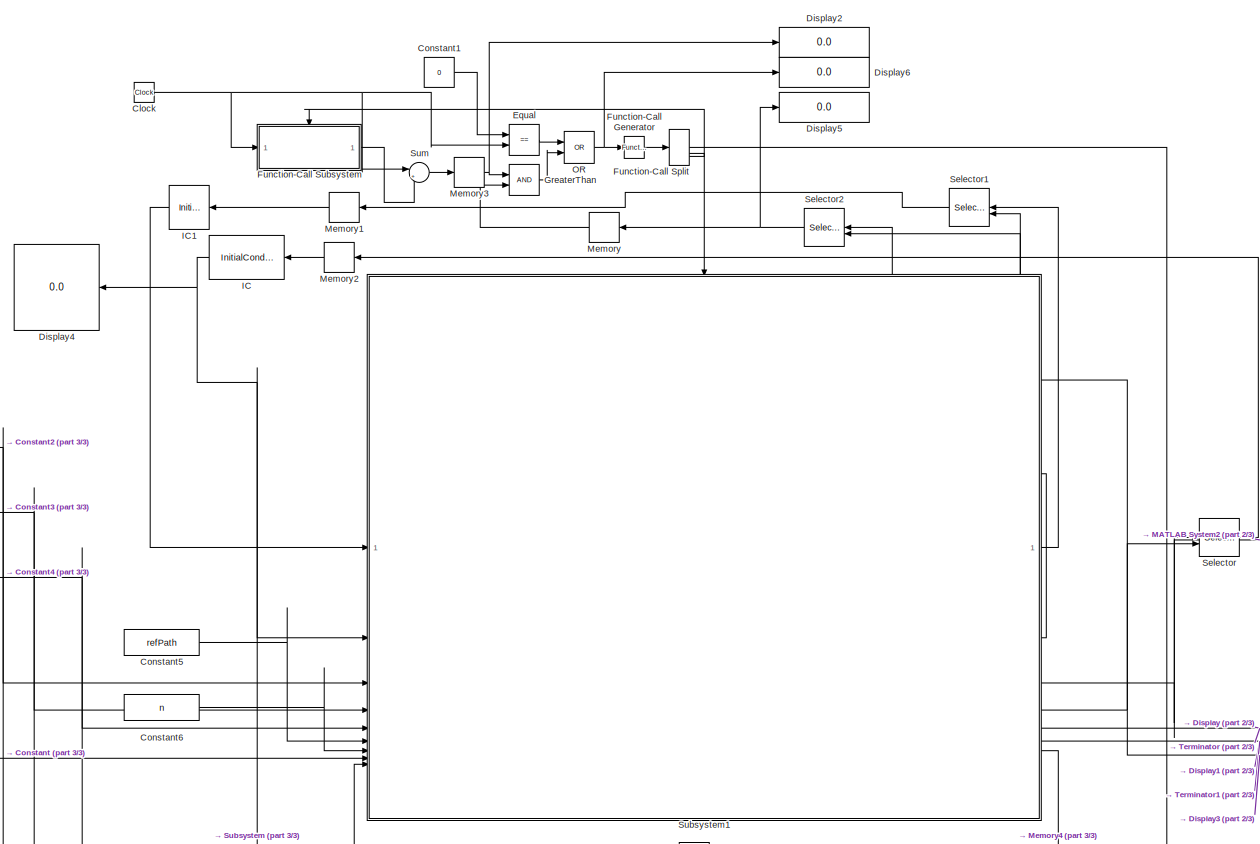
[diagram: root canvas - part 1/3, center side, full height]
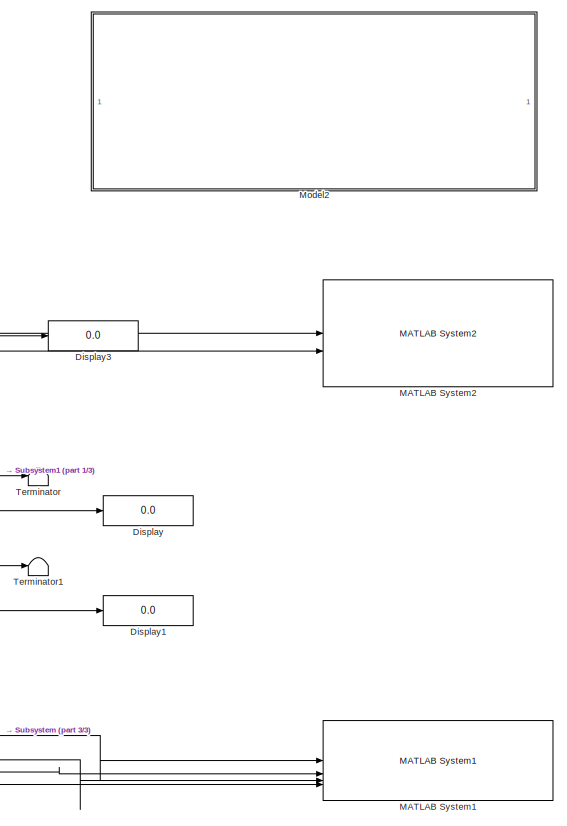
[diagram: root canvas - part 2/3, right side, full height]
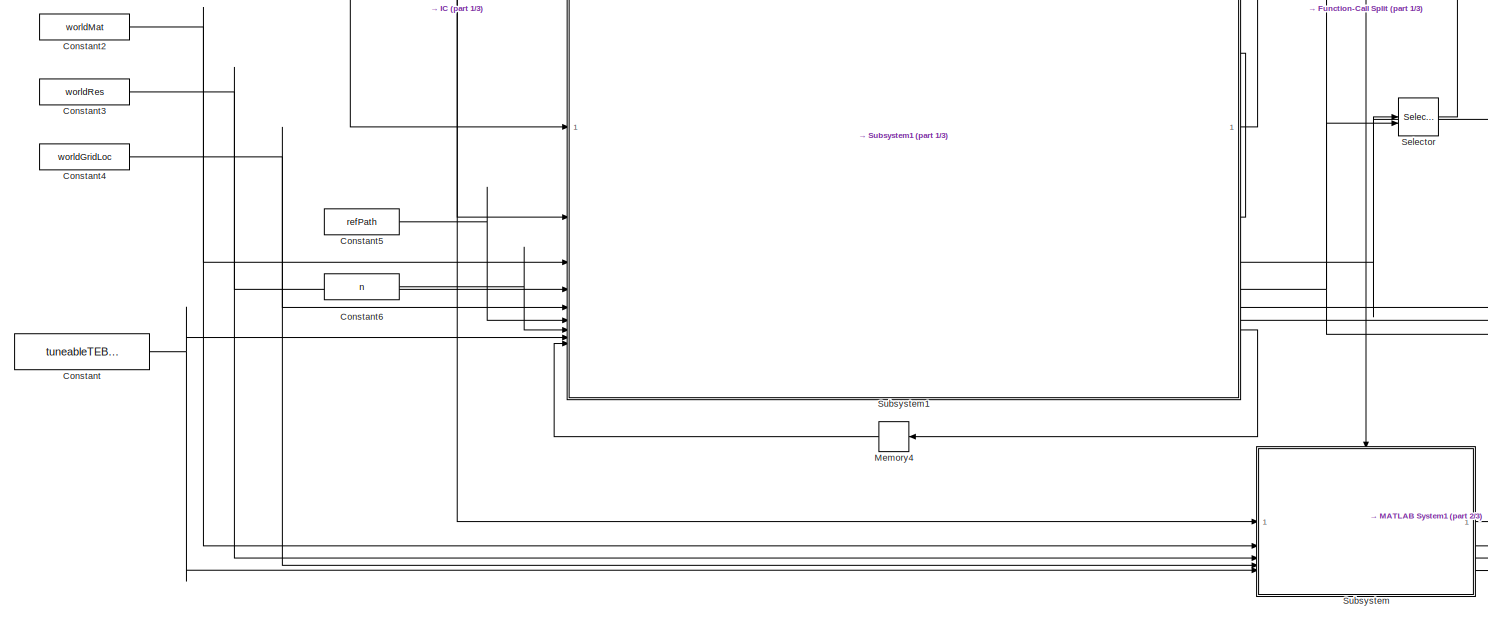
[diagram: root canvas - part 3/3, bottom center region]
MODEL slx_59964655df51
KIND model
CONFIG AbsTol = auto
CONFIG EnableMultiTasking = off
CONFIG FixedStep = auto
CONFIG InitFcn = localPlanSetup
CONFIG MaxStep = auto
CONFIG MinStep = auto
CONFIG RelTol = 1e-3
CONFIG SampleTimeConstraint = Unconstrained
CONFIG SolverName = FixedStepDiscrete
CONFIG StartTime = 0.0
CONFIG StopTime = 30
BLOCK [Clock] Clock
BLOCK [Constant] Constant
  OutDataTypeStr = Bus: teb_bus
  Value = tuneableTEBParamsCpp
BLOCK [Constant] Constant1
  Value = 0
BLOCK [Constant] Constant2
  Value = worldMat
  VectorParams1D = off
BLOCK [Constant] Constant3
  Value = worldRes
BLOCK [Constant] Constant4
  Value = worldGridLoc
  VectorParams1D = off
BLOCK [Constant] Constant5
  Value = refPath
  VectorParams1D = off
BLOCK [Constant] Constant6
  Value = n
BLOCK [Display] Display
  Decimation = 1
BLOCK [Display] Display1
  Decimation = 1
BLOCK [Display] Display2
  Decimation = 1
BLOCK [Display] Display3
  Decimation = 1
BLOCK [Display] Display4
  Decimation = 1
  NameLocation = top
BLOCK [Display] Display5
  Decimation = 1
BLOCK [Display] Display6
  Decimation = 1
BLOCK [RelationalOperator] Equal
  InputSameDT = off
  Operator = ==
  OutDataTypeStr = boolean
  RndMeth = Simplest
BLOCK [Reference] Function-Call Generator  REF=simulink/Ports &
Subsystems/Function-Call
Generator
  SourceBlock = simulink/Ports &\nSubsystems/Function-Call\nGenerator
  SourceType = Function-Call Generator
BLOCK [FunctionCallSplit] Function-Call Split
  IconShape = distinctive
  NumOutputPorts = 3
  OutputPortLayout = default
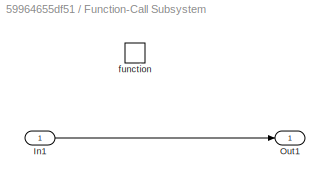
BLOCK [SubSystem] Function-Call Subsystem
  TreatAsAtomicUnit = on
BLOCK [Inport] Function-Call Subsystem/In1
BLOCK [Outport] Function-Call Subsystem/Out1
BLOCK [TriggerPort] Function-Call Subsystem/function
  StatesWhenEnabling = held
  TriggerType = function-call
  VariantControl = (inherit)
BLOCK [RelationalOperator] GreaterThan
  InputSameDT = off
  OutDataTypeStr = boolean
  RndMeth = Simplest
BLOCK [InitialCondition] IC
  NameLocation = top
  Value = refPath(1,:) + [10 10 0]
BLOCK [InitialCondition] IC1
  NameLocation = top
  Value = [0 0]
BLOCK [Reference] MATLAB System1  REF=roshelperlib/MATLAB System1  (lib defined in slx_3328ea0e13a5)
  SourceBlock = roshelperlib/MATLAB System1
  SourceType = exampleHelperMapVisualizerSys
BLOCK [Reference] MATLAB System2  REF=roshelperlib/MATLAB System2  (lib defined in slx_3328ea0e13a5)
  SourceBlock = roshelperlib/MATLAB System2
  SourceType = exampleHelperPathVisualizerSys
BLOCK [Memory] Memory
  NameLocation = top
BLOCK [Memory] Memory1
  NameLocation = top
BLOCK [Memory] Memory2
  NameLocation = top
BLOCK [Memory] Memory3
BLOCK [Memory] Memory4
BLOCK [ModelReference] Model2
  ModelNameDialog = extractLocalMap_simfcnsvr.slx
  ModelReferenceVersion = 2.0
  ScheduleRates = on
BLOCK [Logic] OR
  AllPortsSameDT = off
  IconShape = distinctive
  Operator = OR
  OutDataTypeStr = boolean
BLOCK [Selector] Selector
  IndexOptions = Starting index (port),Select all
  Indices = [1 3],1
  InputPortWidth = 3
  NumberOfDimensions = 2
  OutputSizes = 1,1
BLOCK [Selector] Selector1
  IndexOptions = Starting index (port),Select all
  Indices = [1 3],1
  InputPortWidth = 3
  NameLocation = top
  NumberOfDimensions = 2
  OutputSizes = 1,1
BLOCK [Selector] Selector2
  IndexOptions = Starting index (port),Select all
  Indices = [1 3],1
  InputPortWidth = 3
  NameLocation = top
  NumberOfDimensions = 2
  OutputSizes = 1,1
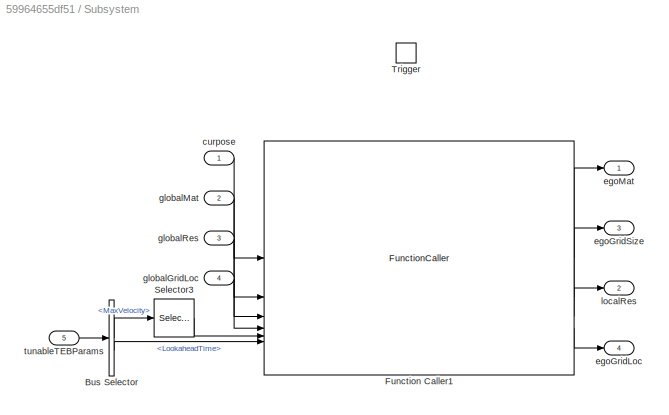
BLOCK [SubSystem] Subsystem
BLOCK [BusSelector] Subsystem/Bus Selector
  OutputSignals = MaxVelocity,LookaheadTime
BLOCK [FunctionCaller] Subsystem/Function Caller1
  FunctionPrototype = [egoMat,egoGridSize,localRes,egoGridLoc] = extractLocalMap(curpose,globalMat,globalRes,globalGridLoc,maxVel,lookaheadTime)
  InputArgumentSpecifications = <Enter example>
  OutputArgumentSpecifications = <Enter example>
BLOCK [Selector] Subsystem/Selector3
  IndexOptions = Index vector (dialog)
  Indices = 1
  InputPortWidth = 2
  OutputSizes = 1
BLOCK [TriggerPort] Subsystem/Trigger
  PortDimensions = 1
  StatesWhenEnabling = held
  TriggerType = function-call
  VariantControl = (inherit)
BLOCK [Inport] Subsystem/curpose
BLOCK [Outport] Subsystem/egoGridLoc
  Port = 4
BLOCK [Outport] Subsystem/egoGridSize
  Port = 3
BLOCK [Outport] Subsystem/egoMat
BLOCK [Inport] Subsystem/globalGridLoc
  Port = 4
BLOCK [Inport] Subsystem/globalMat
  Port = 2
BLOCK [Inport] Subsystem/globalRes
  Port = 3
BLOCK [Outport] Subsystem/localRes
  Port = 2
BLOCK [Inport] Subsystem/tunableTEBParams
  Port = 5
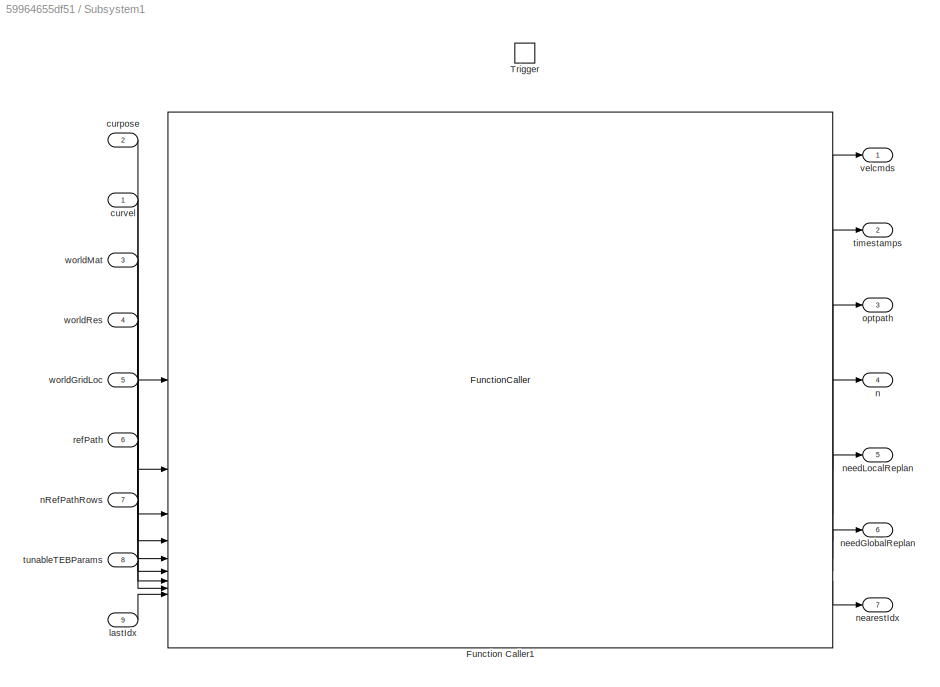
BLOCK [SubSystem] Subsystem1
BLOCK [FunctionCaller] Subsystem1/Function Caller1
  FunctionPrototype = [velcmds,timestamps,optpath,n,needLocalReplan,needGlobalReplan,nearestIdx] = planLocal(curpose,curvel,worldMat,worldRes,worldGridLoc,refPathXY,nRefPathrows,tuneableTEBParams,lastIdx)
  InputArgumentSpecifications = <Enter example>
  OutputArgumentSpecifications = <Enter example>
BLOCK [TriggerPort] Subsystem1/Trigger
  PortDimensions = 1
  StatesWhenEnabling = held
  TriggerType = function-call
  VariantControl = (inherit)
BLOCK [Inport] Subsystem1/curpose
  Port = 2
BLOCK [Inport] Subsystem1/curvel
  NameLocation = top
BLOCK [Inport] Subsystem1/lastIdx
  Port = 9
BLOCK [Outport] Subsystem1/n
  Port = 4
BLOCK [Inport] Subsystem1/nRefPathRows
  Port = 7
BLOCK [Outport] Subsystem1/nearestIdx
  Port = 7
BLOCK [Outport] Subsystem1/needGlobalReplan
  Port = 6
BLOCK [Outport] Subsystem1/needLocalReplan
  Port = 5
BLOCK [Outport] Subsystem1/optpath
  Port = 3
BLOCK [Inport] Subsystem1/refPath
  Port = 6
BLOCK [Outport] Subsystem1/timestamps
  NameLocation = top
  Port = 2
BLOCK [Inport] Subsystem1/tunableTEBParams
  Port = 8
BLOCK [Outport] Subsystem1/velcmds
  NameLocation = top
BLOCK [Inport] Subsystem1/worldGridLoc
  Port = 5
BLOCK [Inport] Subsystem1/worldMat
  Port = 3
BLOCK [Inport] Subsystem1/worldRes
  Port = 4
BLOCK [Sum] Sum
  Inputs = |+-
BLOCK [Terminator] Terminator
BLOCK [Terminator] Terminator1
NET Clock:1 -> Equal:2, Function-Call Subsystem:1, Sum:1
LINE Constant1:1 -> Equal:1
NET Constant2:1 -> Subsystem1:3, Subsystem:2
NET Constant3:1 -> Subsystem1:4, Subsystem:3
NET Constant4:1 -> Subsystem1:5, Subsystem:4
LINE Constant5:1 -> Subsystem1:6
LINE Constant6:1 -> Subsystem1:7
NET Constant:1 -> Subsystem1:8, Subsystem:5
LINE Equal:1 -> OR:1
LINE Function-Call Generator:1 -> Function-Call Split:1
LINE Function-Call Split:1 -> Subsystem:trigger
LINE Function-Call Split:2 -> Subsystem1:trigger
LINE Function-Call Split:3 -> Function-Call Subsystem:trigger
LINE Function-Call Subsystem/In1:1 -> Function-Call Subsystem/Out1:1
LINE Function-Call Subsystem:1 -> Sum:2
LINE GreaterThan:1 -> OR:2
LINE IC1:1 -> Subsystem1:1
NET IC:1 -> Display4:1, Subsystem1:2, Subsystem:1
LINE Memory1:1 -> IC1:1
LINE Memory2:1 -> IC:1
NET Memory3:1 -> Display2:1, GreaterThan:1
LINE Memory4:1 -> Subsystem1:9
LINE Memory:1 -> GreaterThan:2
NET OR:1 -> Display6:1, Function-Call Generator:1
LINE Selector1:1 -> Memory1:1
NET Selector2:1 -> Display5:1, Memory:1
LINE Selector:1 -> Memory2:1
LINE Subsystem/Bus Selector:1 -> Subsystem/Selector3:1
LINE Subsystem/Bus Selector:2 -> Subsystem/Function Caller1:6
LINE Subsystem/Function Caller1:1 -> Subsystem/egoMat:1
LINE Subsystem/Function Caller1:2 -> Subsystem/egoGridSize:1
LINE Subsystem/Function Caller1:3 -> Subsystem/localRes:1
LINE Subsystem/Function Caller1:4 -> Subsystem/egoGridLoc:1
LINE Subsystem/Selector3:1 -> Subsystem/Function Caller1:5
LINE Subsystem/curpose:1 -> Subsystem/Function Caller1:1
LINE Subsystem/globalGridLoc:1 -> Subsystem/Function Caller1:4
LINE Subsystem/globalMat:1 -> Subsystem/Function Caller1:2
LINE Subsystem/globalRes:1 -> Subsystem/Function Caller1:3
LINE Subsystem/tunableTEBParams:1 -> Subsystem/Bus Selector:1
LINE Subsystem1/Function Caller1:1 -> Subsystem1/velcmds:1
LINE Subsystem1/Function Caller1:2 -> Subsystem1/timestamps:1
LINE Subsystem1/Function Caller1:3 -> Subsystem1/optpath:1
LINE Subsystem1/Function Caller1:4 -> Subsystem1/n:1
LINE Subsystem1/Function Caller1:5 -> Subsystem1/needLocalReplan:1
LINE Subsystem1/Function Caller1:6 -> Subsystem1/needGlobalReplan:1
LINE Subsystem1/Function Caller1:7 -> Subsystem1/nearestIdx:1
LINE Subsystem1/curpose:1 -> Subsystem1/Function Caller1:1
LINE Subsystem1/curvel:1 -> Subsystem1/Function Caller1:2
LINE Subsystem1/lastIdx:1 -> Subsystem1/Function Caller1:9
LINE Subsystem1/nRefPathRows:1 -> Subsystem1/Function Caller1:7
LINE Subsystem1/refPath:1 -> Subsystem1/Function Caller1:6
LINE Subsystem1/tunableTEBParams:1 -> Subsystem1/Function Caller1:8
LINE Subsystem1/worldGridLoc:1 -> Subsystem1/Function Caller1:5
LINE Subsystem1/worldMat:1 -> Subsystem1/Function Caller1:3
LINE Subsystem1/worldRes:1 -> Subsystem1/Function Caller1:4
LINE Subsystem1:1 -> Selector1:1
LINE Subsystem1:2 -> Selector2:1
NET Subsystem1:3 -> MATLAB System2:1, Selector:1
NET Subsystem1:4 -> Display3:1, MATLAB System2:2, Selector1:2, Selector2:2, Selector:2
NET Subsystem1:5 -> Display:1, Terminator:1
NET Subsystem1:6 -> Display1:1, Terminator1:1
LINE Subsystem1:7 -> Memory4:1
LINE Subsystem:1 -> MATLAB System1:1
LINE Subsystem:2 -> MATLAB System1:3
LINE Subsystem:3 -> MATLAB System1:2
LINE Subsystem:4 -> MATLAB System1:4
LINE Sum:1 -> Memory3:1
note: NET lines group one-source signal fan-out (src -> all destinations, sorted); 1:1 wires keep LINE
